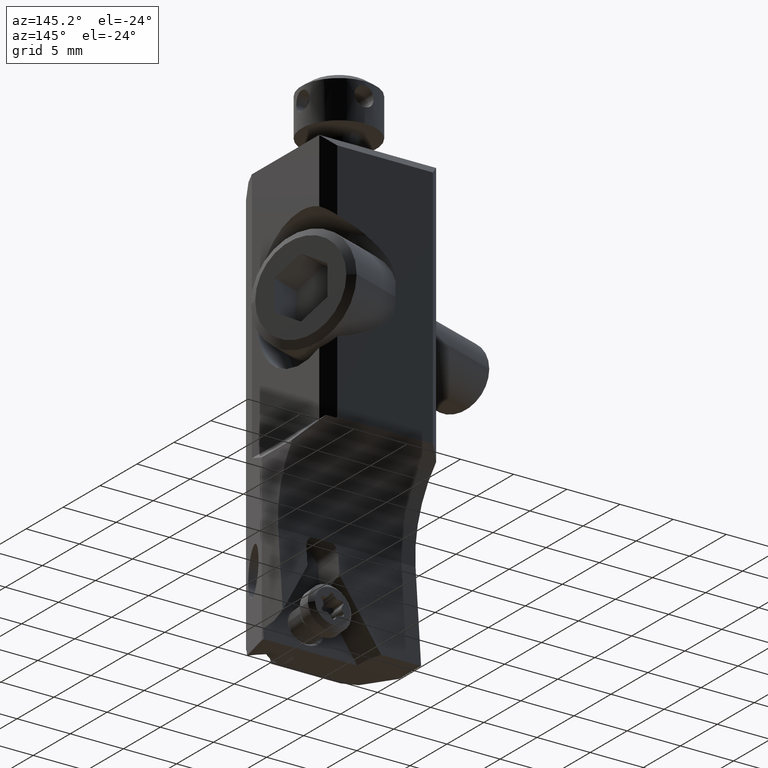
[diagram: clean part render]
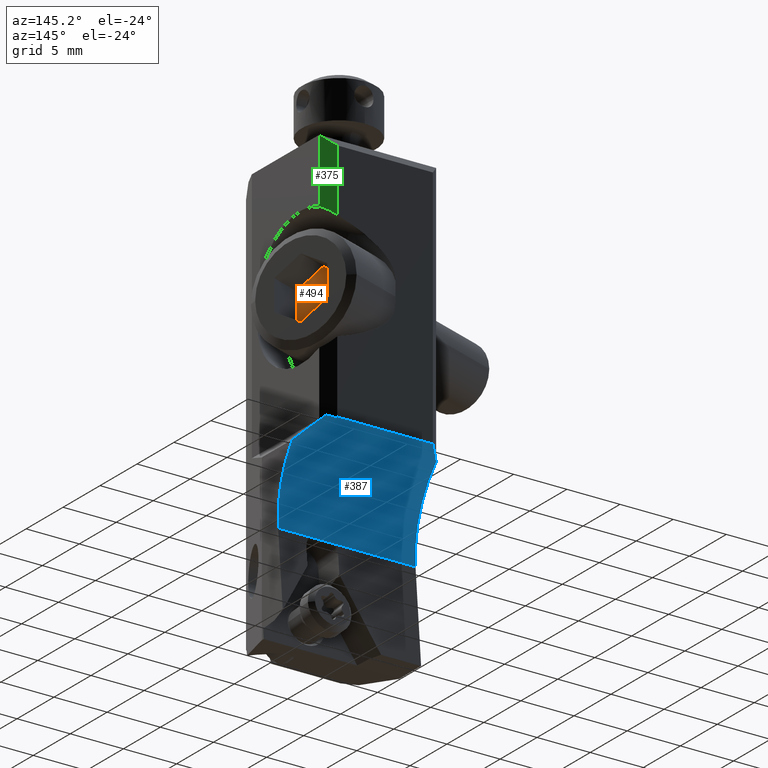
[diagram: same view with three faces highlighted in distinct colors, each labeled with its STEP entity id]
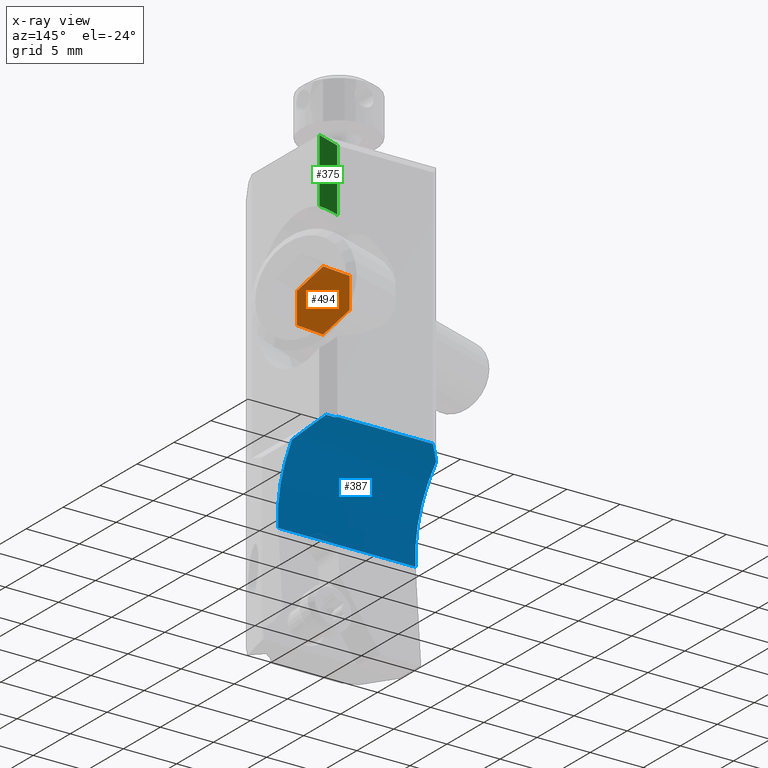
[diagram: x-ray of the same camera — body ghosted, the three highlighted faces saturated]
A machine part, auxiliary view with three faces highlighted in distinct colors.
The next image is the same camera in x-ray (body ghosted, the three faces saturated) — at least one of them is partly hidden behind the body in this view.
Their STEP definitions:

[orange] entity #494 — the highlighted planar face has unit normal (0.9397, 0.342, 0).
#494=ADVANCED_FACE('',(#675),#544,.T.);
#544=PLANE('',#2998);
#675=FACE_OUTER_BOUND('',#828,.T.);
#828=EDGE_LOOP('',(#1939,#1940,#1941,#1942,#1943,#1944));
#997=LINE('',#5385,#1176);
#999=LINE('',#5389,#1178);
#1001=LINE('',#5393,#1180);
#1003=LINE('',#5397,#1182);
#1005=LINE('',#5401,#1184);
#1007=LINE('',#5405,#1186);
#1176=VECTOR('',#3789,1.);
#1178=VECTOR('',#3793,1.);
#1180=VECTOR('',#3797,1.);
#1182=VECTOR('',#3801,1.);
#1184=VECTOR('',#3805,1.);
#1186=VECTOR('',#3809,1.);
#1939=ORIENTED_EDGE('',*,*,#2567,.F.);
#1940=ORIENTED_EDGE('',*,*,#2565,.F.);
#1941=ORIENTED_EDGE('',*,*,#2563,.F.);
#1942=ORIENTED_EDGE('',*,*,#2561,.F.);
#1943=ORIENTED_EDGE('',*,*,#2559,.F.);
#1944=ORIENTED_EDGE('',*,*,#2557,.F.);
#2183=VERTEX_POINT('',#5384);
#2184=VERTEX_POINT('',#5386);
#2185=VERTEX_POINT('',#5390);
#2186=VERTEX_POINT('',#5394);
#2187=VERTEX_POINT('',#5398);
#2188=VERTEX_POINT('',#5402);
#2557=EDGE_CURVE('',#2183,#2184,#997,.T.);
#2559=EDGE_CURVE('',#2184,#2185,#999,.T.);
#2561=EDGE_CURVE('',#2185,#2186,#1001,.T.);
#2563=EDGE_CURVE('',#2186,#2187,#1003,.T.);
#2565=EDGE_CURVE('',#2187,#2188,#1005,.T.);
#2567=EDGE_CURVE('',#2188,#2183,#1007,.T.);
#2998=AXIS2_PLACEMENT_3D('',#5407,#3812,#3813);
#3789=DIRECTION('',(0.296198132725687,-0.813797681348465,0.500000000001679));
#3793=DIRECTION('',(2.807525522128E-14,2.246020417703E-14,1.));
#3797=DIRECTION('',(-0.296198132725896,0.813797681348688,0.500000000001193));
#3801=DIRECTION('',(-0.2961981327256,0.813797681349099,-0.500000000000699));
#3805=DIRECTION('',(0.,6.584224238197E-14,-1.));
#3809=DIRECTION('',(0.296198132725391,-0.813797681348876,-0.500000000001185));
#3812=DIRECTION('',(0.939692620785821,0.342020143325908,0.));
#3813=DIRECTION('',(0.342020143325908,-0.939692620785821,0.));
#5384=CARTESIAN_POINT('',(-2.819077862358,7.977612146951,-14.88675134595));
#5385=CARTESIAN_POINT('',(-2.819077862358,7.977612146951,-14.88675134595));
#5386=CARTESIAN_POINT('',(-1.964027504044,5.628380594986,-13.44337567297));
#5389=CARTESIAN_POINT('',(-1.964027504044,5.628380594986,-13.44337567297));
#5390=CARTESIAN_POINT('',(-1.964027504044,5.628380594986,-10.55662432703));
#5393=CARTESIAN_POINT('',(-1.964027504044,5.628380594986,-10.55662432703));
#5394=CARTESIAN_POINT('',(-2.819077862358,7.977612146951,-9.113248654052));
#5397=CARTESIAN_POINT('',(-2.819077862358,7.977612146951,-9.113248654052));
#5398=CARTESIAN_POINT('',(-3.674128220673,10.32684369892,-10.55662432703));
#5401=CARTESIAN_POINT('',(-3.674128220673,10.32684369892,-10.55662432703));
#5402=CARTESIAN_POINT('',(-3.674128220673,10.32684369892,-13.44337567297));
#5405=CARTESIAN_POINT('',(-3.674128220673,10.32684369892,-13.44337567297));
#5407=CARTESIAN_POINT('',(-2.819077862359,7.977612146953,-12.));

[blue] entity #387 — the highlighted cylindrical surface (partial cylindrical patch) has radius 10 mm, axis along (-1, 0, 0).
#92=B_SPLINE_CURVE_WITH_KNOTS('',3,(#3982,#3983,#3984,#3985),
 .UNSPECIFIED.,.F.,.F.,(4,4),(0.,1.),.UNSPECIFIED.);
#168=CYLINDRICAL_SURFACE('',#2774,10.);
#221=CIRCLE('',#2720,10.);
#227=CIRCLE('',#2736,10.);
#387=ADVANCED_FACE('',(#575),#168,.F.);
#575=FACE_OUTER_BOUND('',#714,.T.);
#714=EDGE_LOOP('',(#1408,#1409,#1410,#1411,#1412,#1413,#1414,#1415,#1416,
#1417));
#878=LINE('',#3976,#1057);
#907=LINE('',#4149,#1086);
#909=LINE('',#4155,#1088);
#910=LINE('',#4157,#1089);
#911=LINE('',#4159,#1090);
#1057=VECTOR('',#3166,1.);
#1086=VECTOR('',#3257,1.);
#1088=VECTOR('',#3265,1.);
#1089=VECTOR('',#3266,1.);
#1090=VECTOR('',#3267,1.);
#1408=ORIENTED_EDGE('',*,*,#2315,.T.);
#1409=ORIENTED_EDGE('',*,*,#2222,.T.);
#1410=ORIENTED_EDGE('',*,*,#2314,.T.);
#1411=ORIENTED_EDGE('',*,*,#2312,.F.);
#1412=ORIENTED_EDGE('',*,*,#2264,.F.);
#1413=ORIENTED_EDGE('',*,*,#2261,.T.);
#1414=ORIENTED_EDGE('',*,*,#2259,.T.);
#1415=ORIENTED_EDGE('',*,*,#2256,.T.);
#1416=ORIENTED_EDGE('',*,*,#2316,.T.);
#1417=ORIENTED_EDGE('',*,*,#2317,.T.);
#1969=VERTEX_POINT('',#3898);
#1970=VERTEX_POINT('',#3900);
#1995=VERTEX_POINT('',#3965);
#1996=VERTEX_POINT('',#3967);
#1998=VERTEX_POINT('',#3973);
#1999=VERTEX_POINT('',#3977);
#2001=VERTEX_POINT('',#3986);
#2031=VERTEX_POINT('',#4150);
#2032=VERTEX_POINT('',#4156);
#2033=VERTEX_POINT('',#4158);
#2222=EDGE_CURVE('',#1970,#1969,#221,.T.);
#2256=EDGE_CURVE('',#1996,#1995,#227,.T.);
#2259=EDGE_CURVE('',#1998,#1996,#2580,.T.);
#2261=EDGE_CURVE('',#1999,#1998,#878,.T.);
#2264=EDGE_CURVE('',#1999,#2001,#92,.T.);
#2312=EDGE_CURVE('',#2001,#2031,#907,.T.);
#2314=EDGE_CURVE('',#1969,#2031,#2588,.T.);
#2315=EDGE_CURVE('',#2032,#1970,#909,.T.);
#2316=EDGE_CURVE('',#1995,#2033,#910,.T.);
#2317=EDGE_CURVE('',#2033,#2032,#911,.T.);
#2580=ELLIPSE('',#2738,14.142135623731,10.);
#2588=ELLIPSE('',#2772,14.142135623731,10.);
#2720=AXIS2_PLACEMENT_3D('',#3899,#3098,#3099);
#2736=AXIS2_PLACEMENT_3D('',#3966,#3155,#3156);
#2738=AXIS2_PLACEMENT_3D('',#3972,#3161,#3162);
#2772=AXIS2_PLACEMENT_3D('',#4153,#3261,#3262);
#2774=AXIS2_PLACEMENT_3D('',#4160,#3268,#3269);
#3098=DIRECTION('',(-1.,0.,0.));
#3099=DIRECTION('',(0.,-0.996194698091805,-0.0871557427469805));
#3155=DIRECTION('',(1.,0.,0.));
#3156=DIRECTION('',(0.,-0.807391732712405,0.590015753982604));
#3161=DIRECTION('',(0.707106781186548,0.,0.707106781186548));
#3162=DIRECTION('',(-0.707106781186548,0.,0.707106781186548));
#3166=DIRECTION('',(1.,-6.396090178399E-13,1.59140815153E-12));
#3257=DIRECTION('',(-1.,0.,-3.592188275232E-14));
#3261=DIRECTION('',(-0.707106781186548,0.707106781186548,0.));
#3262=DIRECTION('',(-0.707106781186548,-0.707106781186548,0.));
#3265=DIRECTION('',(-1.,-1.268576855635E-14,-4.797527017674E-14));
#3266=DIRECTION('',(-1.,-3.829022516955E-13,5.32108293436E-13));
#3267=DIRECTION('',(-1.,2.647935393596E-13,-6.304608079991E-13));
#3268=DIRECTION('',(-1.,0.,0.));
#3269=DIRECTION('',(0.,0.,-1.));
#3898=CARTESIAN_POINT('',(-11.,11.5000000000008,-24.8450509220583));
#3899=CARTESIAN_POINT('',(-11.,18.66574404167,-31.82015753983));
#3900=CARTESIAN_POINT('',(-11.,8.703797060751,-32.6917149673));
#3965=CARTESIAN_POINT('',(1.92,8.703797060751,-32.6917149673));
#3966=CARTESIAN_POINT('',(1.92,18.66574404167,-31.82015753983));
#3967=CARTESIAN_POINT('',(1.9199999999997,10.5918267145489,-25.92));
#3972=CARTESIAN_POINT('',(7.8201575398312,18.66574404167,-31.82015753983));
#3973=CARTESIAN_POINT('',(-1.52290217473765E-13,12.4331574155341,-23.9999999999993));
#3976=CARTESIAN_POINT('',(-0.9331574155321,12.43315741553,-24.));
#3977=CARTESIAN_POINT('',(-0.9331574155321,12.43315741553,-24.));
#3982=CARTESIAN_POINT('',(-0.9331574155336,12.43315741553,-24.));
#3983=CARTESIAN_POINT('',(-0.9553918115019,12.4553918115,-23.98227941084));
#3984=CARTESIAN_POINT('',(-0.9776727920062,12.47767279201,-23.96467674863));
#3985=CARTESIAN_POINT('',(-1.000000000001,12.5,-23.94719110953));
#3986=CARTESIAN_POINT('',(-1.,12.5,-23.94719110953));
#4149=CARTESIAN_POINT('',(-1.,12.5,-23.94719110953));
#4150=CARTESIAN_POINT('',(-9.9999999999995,12.5,-23.9471911095306));
#4153=CARTESIAN_POINT('',(-3.83425595833,18.66574404167,-31.82015753983));
#4155=CARTESIAN_POINT('',(-3.298485840015,8.703797060751,-32.6917149673));
#4156=CARTESIAN_POINT('',(-3.298485840015,8.703797060751,-32.6917149673));
#4157=CARTESIAN_POINT('',(1.92,8.703797060751,-32.6917149673));
#4158=CARTESIAN_POINT('',(-1.044443315103,8.70379706075,-32.6917149673));
#4159=CARTESIAN_POINT('',(-1.044443315103,8.70379706075,-32.6917149673));
#4160=CARTESIAN_POINT('',(2.1784,18.66574404167,-31.82015753983));

[green] entity #375 — the highlighted planar face has unit normal (0.7071, 0.7071, 0).
#375=ADVANCED_FACE('',(#563),#512,.T.);
#512=PLANE('',#2755);
#563=FACE_OUTER_BOUND('',#702,.T.);
#702=EDGE_LOOP('',(#1330,#1331,#1332,#1333));
#885=LINE('',#4007,#1064);
#890=LINE('',#4021,#1069);
#891=LINE('',#4023,#1070);
#1064=VECTOR('',#3191,1.);
#1069=VECTOR('',#3204,1.);
#1070=VECTOR('',#3207,1.);
#1330=ORIENTED_EDGE('',*,*,#2283,.F.);
#1331=ORIENTED_EDGE('',*,*,#2282,.T.);
#1332=ORIENTED_EDGE('',*,*,#2275,.F.);
#1333=ORIENTED_EDGE('',*,*,#2284,.F.);
#2009=VERTEX_POINT('',#4006);
#2010=VERTEX_POINT('',#4008);
#2014=VERTEX_POINT('',#4019);
#2015=VERTEX_POINT('',#4024);
#2275=EDGE_CURVE('',#2009,#2010,#885,.T.);
#2282=EDGE_CURVE('',#2014,#2010,#890,.T.);
#2283=EDGE_CURVE('',#2014,#2015,#891,.T.);
#2284=EDGE_CURVE('',#2015,#2009,#2586,.T.);
#2586=ELLIPSE('',#2754,6.06857855429567,5.5);
#2754=AXIS2_PLACEMENT_3D('',#4025,#3208,#3209);
#2755=AXIS2_PLACEMENT_3D('',#4026,#3210,#3211);
#3191=DIRECTION('',(-2.707919337581E-14,6.544886952172E-14,1.));
#3204=DIRECTION('',(0.577350269189626,-0.577350269189626,0.577350269189626));
#3207=DIRECTION('',(6.533575734068E-14,-1.265832981154E-13,-1.));
#3208=DIRECTION('',(0.707106781186548,0.707106781186548,0.));
#3209=DIRECTION('',(-0.707106781186548,0.707106781186548,0.));
#3210=DIRECTION('',(0.707106781186547,0.707106781186547,0.));
#3211=DIRECTION('',(0.707106781186547,-0.707106781186547,0.));
#4006=CARTESIAN_POINT('',(8.16013923099718E-14,11.5000000000001,-6.02533277089065));
#4007=CARTESIAN_POINT('',(1.632027846199E-13,11.5,-6.025332770889));
#4008=CARTESIAN_POINT('',(0.,11.5,0.));
#4019=CARTESIAN_POINT('',(-1.,12.5,-1.));
#4021=CARTESIAN_POINT('',(-1.,12.5,-1.));
#4023=CARTESIAN_POINT('',(-1.,12.5,-1.));
#4024=CARTESIAN_POINT('',(-0.99999999999976,12.4999999999996,-6.86583830508668));
#4025=CARTESIAN_POINT('',(1.83019200886069,9.66980799113941,-11.));
#4026=CARTESIAN_POINT('',(-0.4999999999999,12.,-3.432919152541));